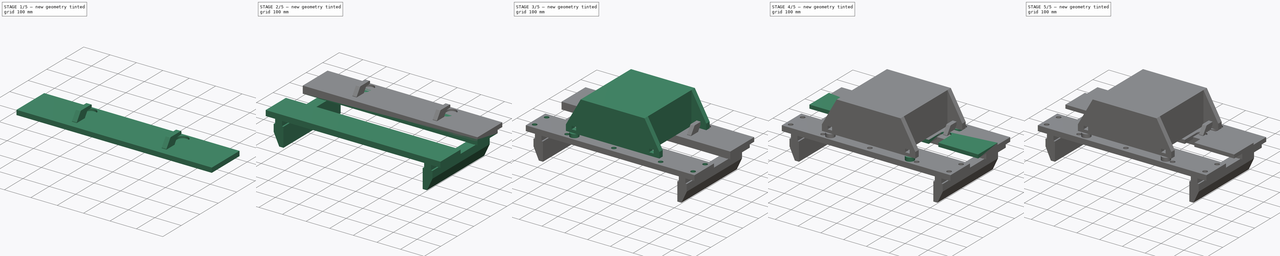
[diagram: build sequence overview — one tinted view per stage of 5, left to right]
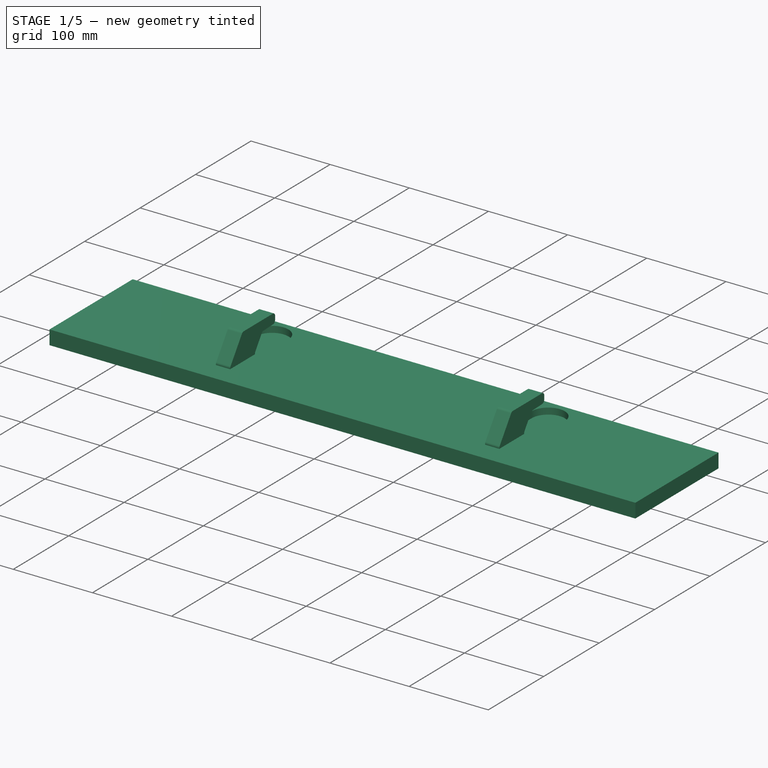
[diagram: stage 1 of 5 — iso view after this stage's code; geometry added in this stage tinted green]
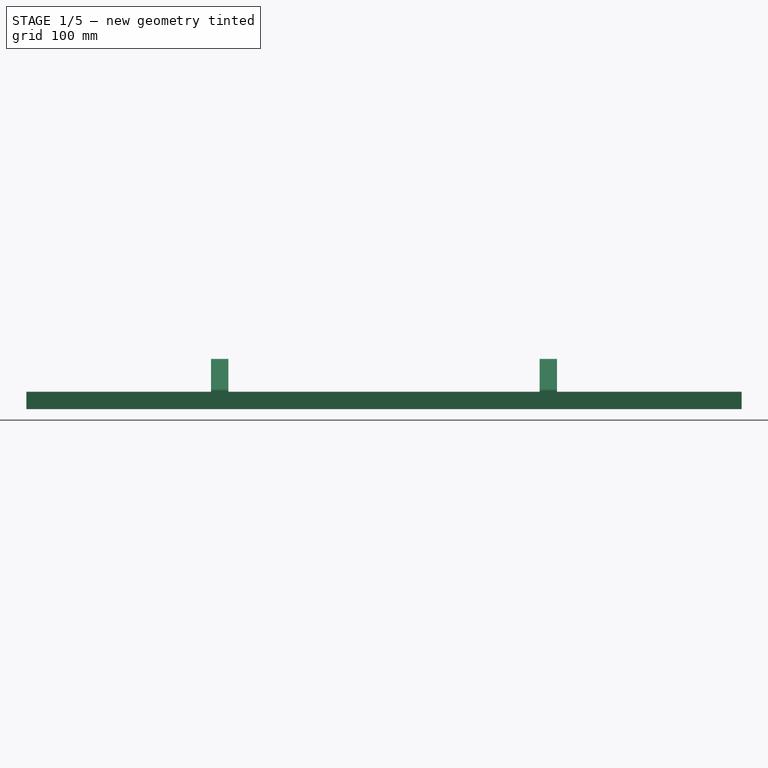
[diagram: stage 1 of 5 — front view after this stage's code; geometry added in this stage tinted green]
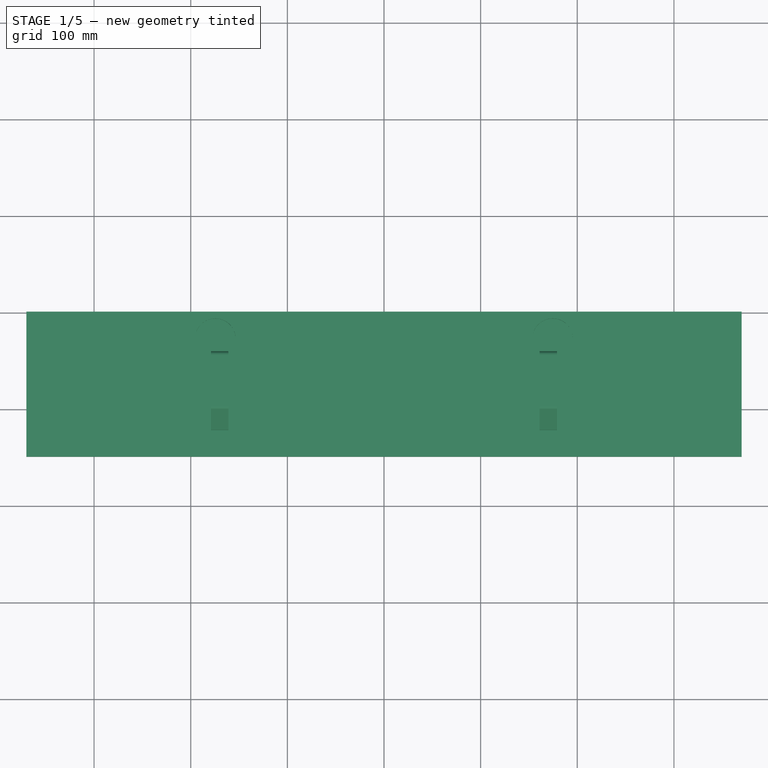
[diagram: stage 1 of 5 — top view after this stage's code; geometry added in this stage tinted green]
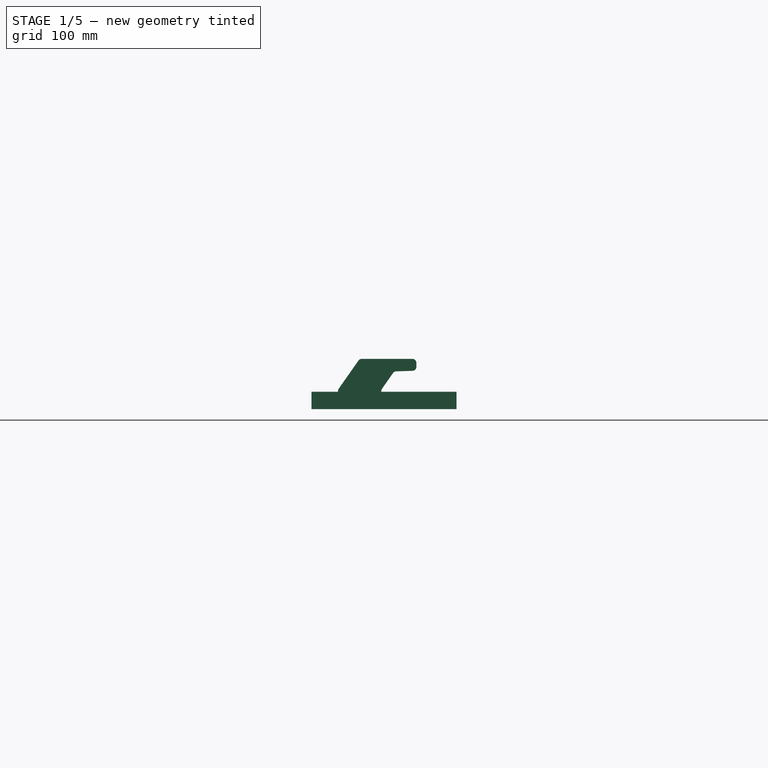
[diagram: stage 1 of 5 — right view after this stage's code; geometry added in this stage tinted green]
FCSTD DOCUMENT  (FreeCAD 0.18R)
Label: Aufnahme
License: CreativeCommons Attribution
LicenseURL: http://creativecommons.org/licenses/by/4.0/
objects: Sketcher::SketchObject×17, PartDesign::Pad×10, PartDesign::Body×7, PartDesign::Pocket×5, PartDesign::LinearPattern×4, App::Part×4, PartDesign::Hole×2, PartDesign::Fillet×1, PartDesign::Chamfer×1, Spreadsheet::Sheet×1, PartDesign::MultiTransform×1, PartDesign::PolarPattern×1, PartDesign::Plane×1, PartDesign::FeatureBase×1
note: 68 computed .brp shape members not serialized (recipe doc carries the construction recipe); baked Part::Feature solids carry a one-line shape summary decoded from their .brp

FEATURE [PartDesign::Body] Body003  label="Workbench"
  Group = -> [Sketch006,Pad005,Sketch010,Pad006,Sketch011,Pad007,Sketch012,Pocket002,Sketch013,Pocket003,PolarPattern]
  Origin = -> Origin004
  Placement = pos=(0,0,-10) rot=(0,0,1;0rad)
  Tip = -> PolarPattern
FEATURE [Sketcher::SketchObject] Sketch014
  MapMode = 5
  Support = -> [XY_Plane008]
  sketch-geometry (4):
    g0: LineSegment StartX=-370 StartY=201 StartZ=0 EndX=370 EndY=201 EndZ=0
    g1: LineSegment StartX=370 StartY=201 StartZ=0 EndX=370 EndY=51 EndZ=0
    g2: LineSegment StartX=370 StartY=51 StartZ=0 EndX=-370 EndY=51 EndZ=0
    g3: LineSegment StartX=-370 StartY=51 StartZ=0 EndX=-370 EndY=201 EndZ=0
  constraints (11):
    c: Coincident(g0,g1)
    c: Coincident(g1,g2)
    c: Coincident(g2,g3)
    c: Coincident(g3,g0)
    c: Horizontal(g2)
    c: Vertical(g1)
    c: Vertical(g3)
    c: DistanceX(g2,g2) = 740
    c: DistanceY(g1,g1) = 150
    c: Symmetric(g0,g0,g-2)
    c: DistanceY(g-1,g1) = 51
FEATURE [PartDesign::Pad] Pad008
  Length = 8
  Length2 = 10
  Profile = -> Sketch014
  Type = 4
FEATURE [Sketcher::SketchObject] Sketch015
  MapMode = 5
  Support = -> [XY_Plane008]
  sketch-geometry (9):
    g0: ArcOfCircle CenterX=-174.5 CenterY=173 CenterZ=0 NormalX=0 NormalY=0 NormalZ=1 AngleXU=0 Radius=21 StartAngle=6e-16 EndAngle=3.14159
    g1: ArcOfCircle CenterX=-174.5 CenterY=148 CenterZ=0 NormalX=0 NormalY=0 NormalZ=1 AngleXU=0 Radius=21 StartAngle=3.14159 EndAngle=6.28319
    g2: LineSegment StartX=-195.5 StartY=173 StartZ=0 EndX=-195.5 EndY=148 EndZ=0
    g3: LineSegment StartX=-153.5 StartY=173 StartZ=0 EndX=-153.5 EndY=148 EndZ=0
    g4: ArcOfCircle CenterX=174.5 CenterY=173 CenterZ=0 NormalX=0 NormalY=0 NormalZ=1 AngleXU=0 Radius=21 StartAngle=2e-16 EndAngle=3.14159
    g5: ArcOfCircle CenterX=174.5 CenterY=148 CenterZ=0 NormalX=0 NormalY=0 NormalZ=1 AngleXU=0 Radius=21 StartAngle=3.14159 EndAngle=6.28319
    g6: LineSegment StartX=153.5 StartY=173 StartZ=0 EndX=153.5 EndY=148 EndZ=0
    g7: LineSegment StartX=195.5 StartY=173 StartZ=0 EndX=195.5 EndY=148 EndZ=0
    g8: GeomPoint X=-174.5 Y=-148 Z=0
  constraints (20):
    c: Tangent(g0,g3) = 1.5708
    c: Tangent(g0,g2) = -1.5708
    c: Tangent(g2,g1) = -1.5708
    c: Tangent(g3,g1) = 1.5708
    c: Vertical(g2)
    c: Equal(g0,g1)
    c: Tangent(g4,g7) = 1.5708
    c: Tangent(g4,g6) = -1.5708
    c: Tangent(g6,g5) = -1.5708
    c: Tangent(g7,g5) = 1.5708
    c: Vertical(g6)
    c: Equal(g4,g5)
    c: Symmetric(g4,g0,g-2)
    c: DistanceX(g0,g4) = 349
    c: Diameter(g4) = 42
    c: Equal(g0,g4)
    c: Symmetric(g1,g8,g-1)
    c: DistanceY(g8,g1) = 296
    c: Equal(g3,g6)
    c: DistanceY(g7,g7) = 25
FEATURE [PartDesign::Pocket] Pocket004
  BaseFeature = -> Pad008
  Length = 5
  Length2 = 100
  Profile = -> Sketch015
  Reversed = true
  Type = 1
FEATURE [PartDesign::Plane] DatumPlane
  AttachmentOffset = pos=(0,0,-170) rot=(0,0,1;0rad)
  Length = 24
  MapMode = 5
  Placement = pos=(-170,3.77e-14,-3.77e-14) rot=(0.57735,0.57735,0.57735;2.0944rad)
  ResizeMode = 0
  Support = -> [YZ_Plane008]
  Width = 24
FEATURE [Sketcher::SketchObject] Sketch016
  MapMode = 5
  Placement = pos=(-170,3.77e-14,-3.77e-14) rot=(0.57735,0.57735,0.57735;2.0944rad)
  Support = -> [DatumPlane]
  sketch-geometry (23):
    g0: LineSegment [constr] StartX=136.5 StartY=29 StartZ=0 EndX=123.196 EndY=10 EndZ=0
    g1: LineSegment [constr] StartX=123.196 StartY=10 StartZ=0 EndX=123.196 EndY=0 EndZ=0
    g2: LineSegment [constr] StartX=123.196 StartY=0 StartZ=0 EndX=78.3828 EndY=0 EndZ=0
    g3: LineSegment [constr] StartX=78.3828 StartY=0 StartZ=0 EndX=78.3828 EndY=10 EndZ=0
    g4: LineSegment [constr] StartX=100.789 StartY=42 StartZ=0 EndX=159.5 EndY=42 EndZ=0
    g5: LineSegment [constr] StartX=159.5 StartY=42 StartZ=0 EndX=159.5 EndY=29.8032 EndZ=0
    g6: LineSegment [constr] StartX=159.5 StartY=29.8032 StartZ=0 EndX=136.5 EndY=29 EndZ=0
    g7: LineSegment [constr] StartX=100.789 StartY=42 StartZ=0 EndX=78.3828 EndY=10 EndZ=0
    g8: GeomPoint X=100.789 Y=0 Z=0
    g9: LineSegment StartX=102.872 StartY=42 StartZ=0 EndX=155.5 EndY=42 EndZ=0
    g10: LineSegment StartX=159.5 StartY=38 StartZ=0 EndX=159.5 EndY=33.6659 EndZ=0
    g11: LineSegment StartX=155.64 StartY=29.6684 StartZ=0 EndX=138.493 EndY=29.0696 EndZ=0
    g12: LineSegment StartX=135.356 StartY=27.3663 StartZ=0 EndX=123.919 EndY=11.0331 EndZ=0
    g13: LineSegment StartX=123.196 StartY=8.7388 StartZ=0 EndX=123.196 EndY=0 EndZ=0
    g14: LineSegment StartX=123.196 StartY=0 StartZ=0 EndX=78.3828 EndY=0 EndZ=0
    g15: LineSegment StartX=78.3828 StartY=0 StartZ=0 EndX=78.3828 EndY=8.7388 EndZ=0
    g16: LineSegment StartX=79.1062 StartY=11.0331 StartZ=0 EndX=99.5951 EndY=40.2943 EndZ=0
    g17: ArcOfCircle CenterX=155.5 CenterY=38 CenterZ=0 NormalX=0 NormalY=0 NormalZ=1 AngleXU=0 Radius=4 StartAngle=5.8e-15 EndAngle=1.5708
    g18: ArcOfCircle CenterX=155.5 CenterY=33.6659 CenterZ=0 NormalX=0 NormalY=0 NormalZ=1 AngleXU=0 Radius=4 StartAngle=4.7473 EndAngle=6.28319
    g19: ArcOfCircle CenterX=138.633 CenterY=25.072 CenterZ=0 NormalX=0 NormalY=0 NormalZ=1 AngleXU=0 Radius=4 StartAngle=1.6057 EndAngle=2.53073
    g20: ArcOfCircle CenterX=127.196 CenterY=8.7388 CenterZ=0 NormalX=0 NormalY=0 NormalZ=1 AngleXU=0 Radius=4 StartAngle=2.53073 EndAngle=3.14159
    g21: ArcOfCircle CenterX=82.3828 CenterY=8.7388 CenterZ=0 NormalX=0 NormalY=0 NormalZ=1 AngleXU=0 Radius=4 StartAngle=2.53073 EndAngle=3.14159
    g22: ArcOfCircle CenterX=102.872 CenterY=38 CenterZ=0 NormalX=0 NormalY=0 NormalZ=1 AngleXU=0 Radius=4 StartAngle=1.5708 EndAngle=2.53073
  constraints (53):
    c: Coincident(g0,g1)
    c: Coincident(g1,g2)
    c: Coincident(g2,g3)
    c: Coincident(g4,g5)
    c: Vertical(g5)
    c: Vertical(g1)
    c: Vertical(g3)
    c: Horizontal(g2)
    c: PointOnObject(g-1,g2)
    c: DistanceX(g-1,g0) = 136.5
    c: Coincident(g7,g3)
    c: DistanceY(g1,g1) = 10
    c: Equal(g3,g1)
    c: DistanceY(g1,g6) = 29
    c: Coincident(g5,g6)
    c: Angle(g4,g6) = 0.0349066
    c: Coincident(g4,g7)
    c: Coincident(g0,g6)
    c: Horizontal(g4)
    c: Angle(g0,g-1) = 2.18166
    c: DistanceY(g0,g4) = 13
    c: DistanceX(g6,g6) = 23
    c: Parallel(g0,g7)
    c: Symmetric(g2,g2,g8)
    c: Vertical(g7,g8)
    c: Tangent(g9,g17) = 1.5708
    c: Tangent(g10,g17) = 1.5708
    c: Tangent(g10,g18) = 1.5708
    c: Tangent(g11,g18) = 1.5708
    c: Tangent(g11,g19) = -1.5708
    c: Tangent(g12,g19) = -1.5708
    c: Tangent(g12,g20) = -1.5708
    c: Tangent(g13,g20) = -1.5708
    c: Tangent(g15,g21) = 1.5708
    c: Tangent(g16,g21) = 1.5708
    c: Tangent(g9,g22) = 1.5708
    c: Tangent(g16,g22) = 1.5708
    c: Equal(g22,g21)
    c: Equal(g19,g18)
    c: Equal(g18,g17)
    c: Tangent(g4,g9)
    c: Tangent(g7,g16)
    c: Tangent(g15,g3)
    c: Tangent(g14,g2)
    c: Tangent(g13,g1)
    c: Tangent(g12,g0)
    c: Tangent(g11,g6)
    c: Tangent(g10,g5)
    c: Coincident(g15,g14)
    c: Coincident(g14,g13)
    c: Equal(g21,g20)
    c: Equal(g20,g17)
    c: Radius(g17) = 4
FEATURE [PartDesign::Pad] Pad009
  BaseFeature = -> Pocket004
  Length = 18
  Length2 = 100
  Midplane = true
  Profile = -> Sketch016
  Type = 0
FEATURE [PartDesign::LinearPattern] LinearPattern003
  BaseFeature = -> Pad009
  Direction = -> X_Axis008
  Length = 340
  Occurrences = 2
  Originals = -> [Pad009]
FEATURE [PartDesign::Body] Body005
  Group = -> [Sketch014,Pad008,Sketch015,Pocket004,DatumPlane,Sketch016,Pad009,LinearPattern003]
  Origin = -> Origin008
  Tip = -> LinearPattern003
FEATURE [PartDesign::FeatureBase] Clone
  BaseFeature = -> Body005
FEATURE [PartDesign::Body] Body006
  Group = -> [Clone]
  Origin = -> Origin010
  Placement = pos=(0,0,0) rot=(0,0,1;3.14159rad)
  Tip = -> Clone
FEATURE [App::Part] Part003
  Group = -> [Body003,Body004,Body005,Body006]
  Origin = -> Origin009
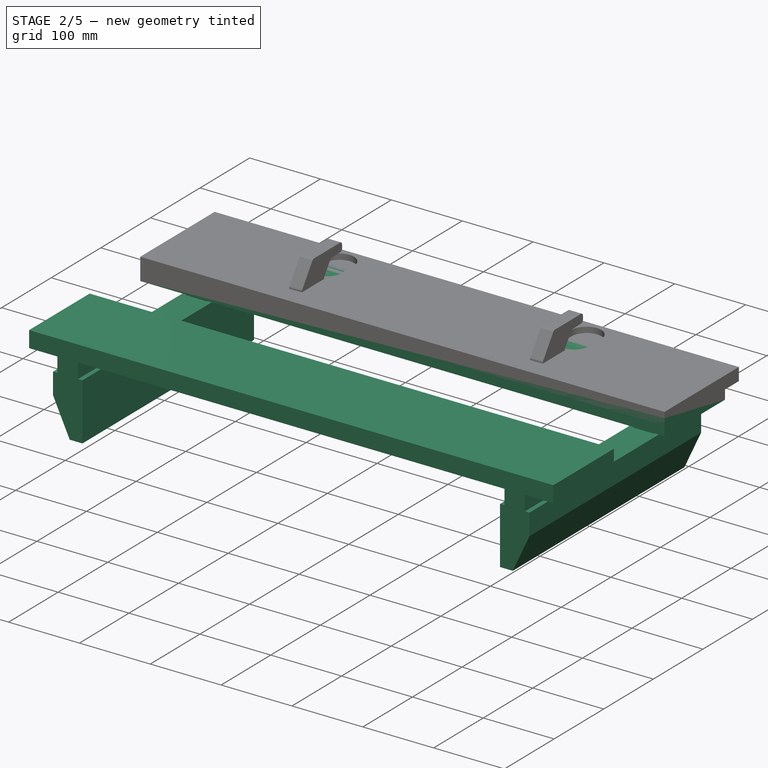
[diagram: stage 2 of 5 — iso view after this stage's code; geometry added in this stage tinted green]
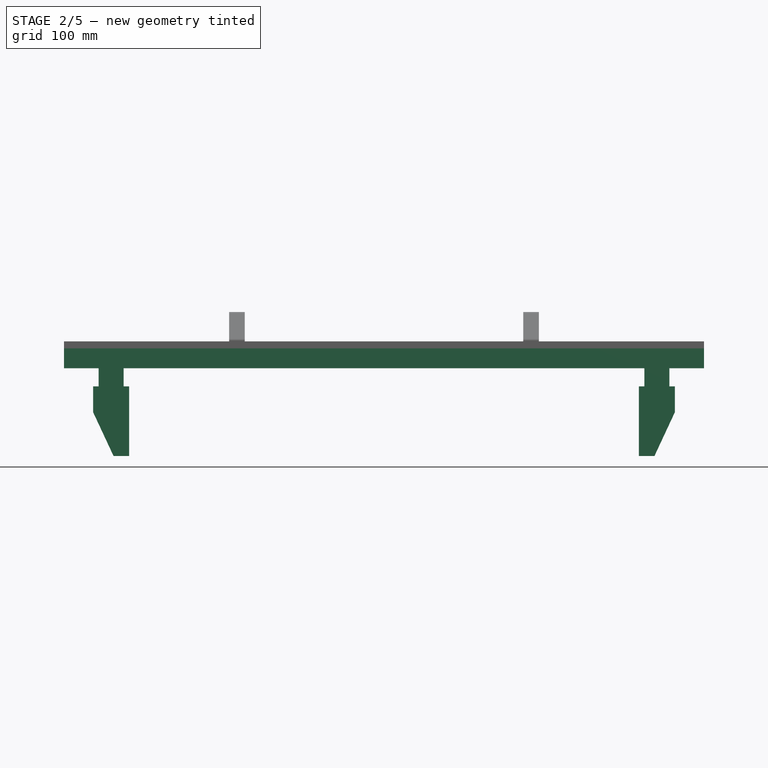
[diagram: stage 2 of 5 — front view after this stage's code; geometry added in this stage tinted green]
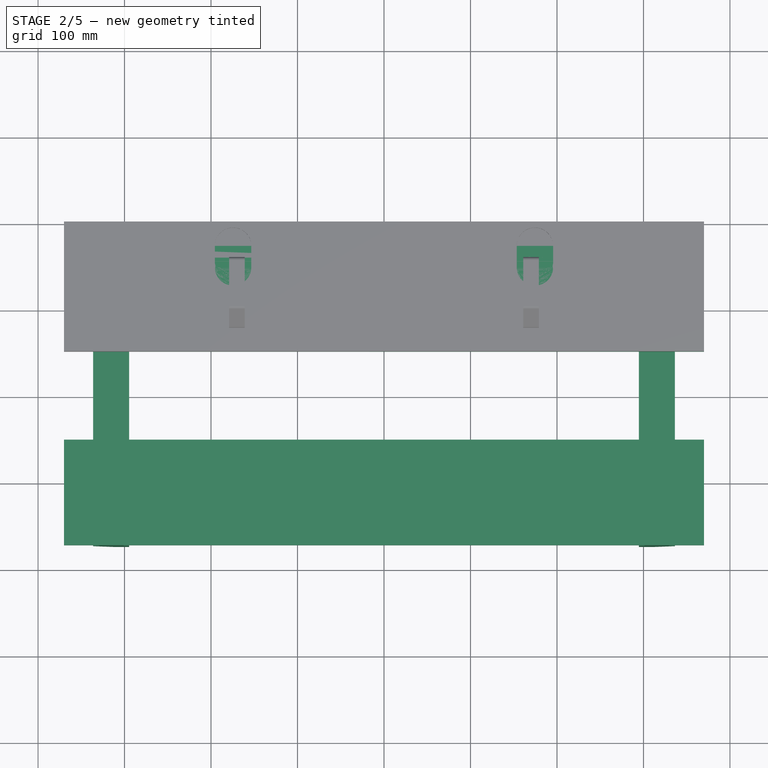
[diagram: stage 2 of 5 — top view after this stage's code; geometry added in this stage tinted green]
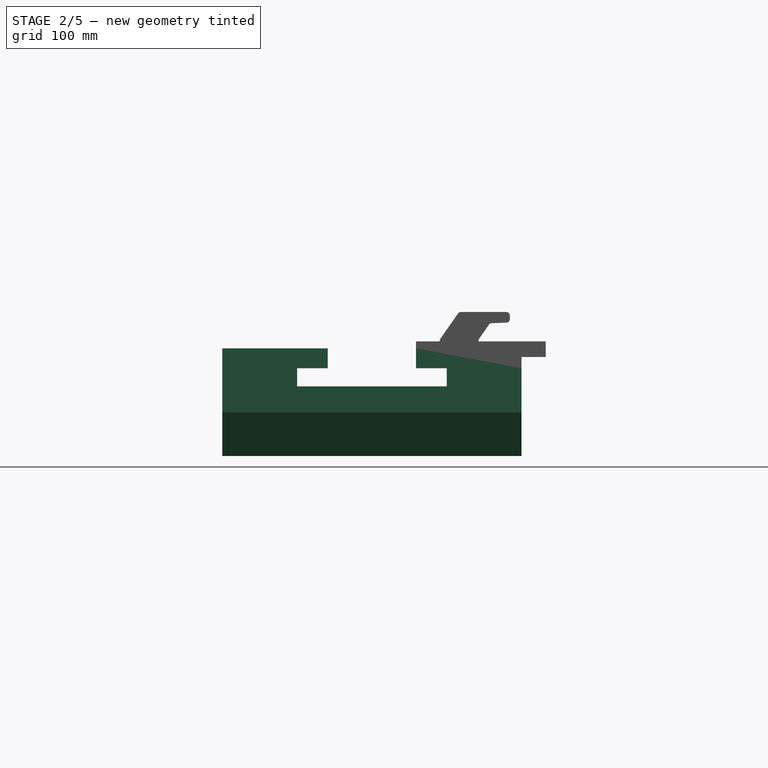
[diagram: stage 2 of 5 — right view after this stage's code; geometry added in this stage tinted green]
FEATURE [PartDesign::Body] Body004  label="Planer"
  Group = -> [Sketch007,Pad003,Sketch008,Sketch009,Pocket001,Pad004,MultiTransform,LinearPattern001,LinearPattern002]
  Origin = -> Origin
  Tip = -> MultiTransform
FEATURE [PartDesign::Pad] Pad005
  Length = 23
  Length2 = 100
  Profile = -> Sketch006
  Reversed = true
  Type = 0
FEATURE [Sketcher::SketchObject] Sketch010
  ExternalGeometry = -> [Pad005]
  MapMode = 5
  Placement = pos=(0,0,-23) rot=(1,0,0;3.14159rad)
  Support = -> [Pad005]
  sketch-geometry (16):
    g0: LineSegment StartX=-330 StartY=173 StartZ=0 EndX=-301 EndY=173 EndZ=0
    g1: LineSegment StartX=-301 StartY=173 StartZ=0 EndX=-301 EndY=86.5 EndZ=0
    g2: LineSegment StartX=-301 StartY=86.5 StartZ=0 EndX=-330 EndY=86.5 EndZ=0
    g3: LineSegment StartX=-330 StartY=86.5 StartZ=0 EndX=-330 EndY=173 EndZ=0
    g4: LineSegment StartX=-330 StartY=-86.5 StartZ=0 EndX=-301 EndY=-86.5 EndZ=0
    g5: LineSegment StartX=-301 StartY=-86.5 StartZ=0 EndX=-301 EndY=-173 EndZ=0
    g6: LineSegment StartX=-301 StartY=-173 StartZ=0 EndX=-330 EndY=-173 EndZ=0
    g7: LineSegment StartX=-330 StartY=-173 StartZ=0 EndX=-330 EndY=-86.5 EndZ=0
    g8: LineSegment StartX=301 StartY=-86.5 StartZ=0 EndX=330 EndY=-86.5 EndZ=0
    g9: LineSegment StartX=330 StartY=-86.5 StartZ=0 EndX=330 EndY=-173 EndZ=0
    g10: LineSegment StartX=330 StartY=-173 StartZ=0 EndX=301 EndY=-173 EndZ=0
    g11: LineSegment StartX=301 StartY=-173 StartZ=0 EndX=301 EndY=-86.5 EndZ=0
    g12: LineSegment StartX=301 StartY=173 StartZ=0 EndX=330 EndY=173 EndZ=0
    g13: LineSegment StartX=330 StartY=173 StartZ=0 EndX=330 EndY=86.5 EndZ=0
    g14: LineSegment StartX=330 StartY=86.5 StartZ=0 EndX=301 EndY=86.5 EndZ=0
    g15: LineSegment StartX=301 StartY=86.5 StartZ=0 EndX=301 EndY=173 EndZ=0
  constraints (42):
    c: Coincident(g0,g1)
    c: Coincident(g1,g2)
    c: Coincident(g2,g3)
    c: Coincident(g3,g0)
    c: Horizontal(g2)
    c: Vertical(g1)
    c: Coincident(g4,g5)
    c: Coincident(g5,g6)
    c: Coincident(g6,g7)
    c: Coincident(g7,g4)
    c: Horizontal(g4)
    c: Horizontal(g6)
    c: Vertical(g5)
    c: Coincident(g8,g9)
    c: Coincident(g9,g10)
    c: Coincident(g10,g11)
    c: Coincident(g11,g8)
    c: Horizontal(g8)
    c: Vertical(g9)
    c: Vertical(g11)
    c: Coincident(g12,g13)
    c: Coincident(g13,g14)
    c: Coincident(g14,g15)
    c: Coincident(g15,g12)
    c: Horizontal(g14)
    c: Vertical(g15)
    c: DistanceX(g0,g0) = 29
    c: DistanceY(g1,g1) = 86.5
    c: DistanceX(g-3,g0) = 40
    c: Equal(g2,g6)
    c: Equal(g6,g14)
    c: Equal(g14,g10)
    c: Equal(g1,g5)
    c: Equal(g5,g9)
    c: Equal(g9,g13)
    c: PointOnObject(g-3,g0)
    c: Tangent(g0,g12)
    c: Tangent(g7,g3)
    c: Symmetric(g0,g6,g-1)
    c: Symmetric(g0,g12,g-2)
    c: Tangent(g13,g9)
    c: Tangent(g10,g6)
FEATURE [PartDesign::Pad] Pad006
  BaseFeature = -> Pad005
  Length = 21
  Length2 = 100
  Profile = -> Sketch010
  Type = 0
FEATURE [Sketcher::SketchObject] Sketch011
  ExternalGeometry = -> [Pad006]
  MapMode = 5
  Placement = pos=(0,0,0) rot=(1,0,0;1.5708rad)
  Support = -> [XZ_Plane004]
  sketch-geometry (13):
    g0: LineSegment StartX=-294.75 StartY=-44 StartZ=0 EndX=-294.75 EndY=-124.5 EndZ=0
    g1: LineSegment StartX=-294.75 StartY=-124.5 StartZ=0 EndX=-312.701 EndY=-124.5 EndZ=0
    g2: LineSegment StartX=-312.701 StartY=-124.5 StartZ=0 EndX=-336.25 EndY=-74 EndZ=0
    g3: LineSegment StartX=-336.25 StartY=-74 StartZ=0 EndX=-336.25 EndY=-44 EndZ=0
    g4: LineSegment StartX=294.75 StartY=-44 StartZ=0 EndX=336.25 EndY=-44 EndZ=0
    g5: LineSegment StartX=336.25 StartY=-44 StartZ=0 EndX=336.25 EndY=-74 EndZ=0
    g6: LineSegment StartX=336.25 StartY=-74 StartZ=0 EndX=312.701 EndY=-124.5 EndZ=0
    g7: LineSegment StartX=312.701 StartY=-124.5 StartZ=0 EndX=294.75 EndY=-124.5 EndZ=0
    g8: LineSegment StartX=294.75 StartY=-124.5 StartZ=0 EndX=294.75 EndY=-44 EndZ=0
    g9: LineSegment [constr] StartX=-336.25 StartY=-44 StartZ=0 EndX=-330 EndY=-44 EndZ=0
    g10: LineSegment [constr] StartX=-330 StartY=-44 StartZ=0 EndX=-301 EndY=-44 EndZ=0
    g11: LineSegment [constr] StartX=-301 StartY=-44 StartZ=0 EndX=-294.75 EndY=-44 EndZ=0
    g12: LineSegment StartX=-336.25 StartY=-44 StartZ=0 EndX=-294.75 EndY=-44 EndZ=0
  constraints (35):
    c: Coincident(g0,g1)
    c: Coincident(g1,g2)
    c: Coincident(g2,g3)
    c: Coincident(g4,g5)
    c: Coincident(g5,g6)
    c: Coincident(g6,g7)
    c: Coincident(g7,g8)
    c: Coincident(g4,g8)
    c: Horizontal(g7)
    c: Horizontal(g1)
    c: Vertical(g0)
    c: Vertical(g3)
    c: Vertical(g5)
    c: Vertical(g8)
    c: Symmetric(g0,g4,g-2)
    c: Symmetric(g5,g2,g-2)
    c: Equal(g3,g5)
    c: Equal(g7,g1)
    c: Equal(g8,g0)
    c: Coincident(g9,g10)
    c: Coincident(g10,g11)
    c: Coincident(g0,g11)
    c: Coincident(g3,g9)
    c: Horizontal(g9)
    c: Horizontal(g10)
    c: Horizontal(g11)
    c: Equal(g11,g9)
    c: Equal(g10,g-3)
    c: Coincident(g9,g-3)
    c: DistanceX(g3,g0) = 41.5
    c: DistanceY(g0,g0) = 80.5
    c: DistanceY(g3,g3) = 30
    c: Angle(g0,g2) = 0.436332
    c: Coincident(g3,g12)
    c: Coincident(g0,g12)
FEATURE [PartDesign::Pad] Pad007
  BaseFeature = -> Pad006
  Length = 346
  Length2 = 100
  Midplane = true
  Profile = -> Sketch011
  Type = 0
FEATURE [Sketcher::SketchObject] Sketch012
  ExternalGeometry = -> [Pad007]
  MapMode = 5
  Support = -> [XY_Plane004]
  sketch-geometry (4):
    g0: LineSegment StartX=-370 StartY=51 StartZ=0 EndX=370 EndY=51 EndZ=0
    g1: LineSegment StartX=370 StartY=51 StartZ=0 EndX=370 EndY=-51 EndZ=0
    g2: LineSegment StartX=370 StartY=-51 StartZ=0 EndX=-370 EndY=-51 EndZ=0
    g3: LineSegment StartX=-370 StartY=-51 StartZ=0 EndX=-370 EndY=51 EndZ=0
  constraints (10):
    c: Coincident(g0,g1)
    c: Coincident(g1,g2)
    c: Coincident(g2,g3)
    c: Coincident(g3,g0)
    c: Horizontal(g0)
    c: Horizontal(g2)
    c: Vertical(g1)
    c: Symmetric(g0,g1,g-1)
    c: Tangent(g3,g-3)
    c: DistanceY(g0,g-3) = 122
FEATURE [PartDesign::Pocket] Pocket002
  BaseFeature = -> Pad007
  Length = 23
  Length2 = 100
  Profile = -> Sketch012
  Type = 2
FEATURE [Sketcher::SketchObject] Sketch013
  ExternalGeometry = -> [Pocket002]
  MapMode = 5
  Support = -> [XY_Plane004]
  sketch-geometry (12):
    g0: Circle CenterX=347.5 CenterY=149.5 CenterZ=0 NormalX=0 NormalY=0 NormalZ=1 AngleXU=0 Radius=10
    g1: Circle CenterX=347.5 CenterY=74.5 CenterZ=0 NormalX=0 NormalY=0 NormalZ=1 AngleXU=0 Radius=10
    g2: Circle CenterX=205 CenterY=149.5 CenterZ=0 NormalX=0 NormalY=0 NormalZ=1 AngleXU=0 Radius=10
    g3: Circle CenterX=0 CenterY=149.5 CenterZ=0 NormalX=0 NormalY=0 NormalZ=1 AngleXU=0 Radius=10
    g4: Circle CenterX=75 CenterY=74.5 CenterZ=0 NormalX=0 NormalY=0 NormalZ=1 AngleXU=0 Radius=10
    g5: Circle CenterX=0 CenterY=74.5 CenterZ=0 NormalX=0 NormalY=0 NormalZ=1 AngleXU=0 Radius=10
    g6: Circle CenterX=-75 CenterY=74.5 CenterZ=0 NormalX=0 NormalY=0 NormalZ=1 AngleXU=0 Radius=10
    g7: Circle CenterX=-347.5 CenterY=149.5 CenterZ=0 NormalX=0 NormalY=0 NormalZ=1 AngleXU=0 Radius=10
    g8: Circle CenterX=-347.5 CenterY=74.5 CenterZ=0 NormalX=0 NormalY=0 NormalZ=1 AngleXU=0 Radius=10
    g9: Circle CenterX=-205 CenterY=149.5 CenterZ=0 NormalX=0 NormalY=0 NormalZ=1 AngleXU=0 Radius=10
    g10: LineSegment [constr] StartX=-347.5 StartY=149.5 StartZ=0 EndX=-370 EndY=173 EndZ=0
    g11: LineSegment [constr] StartX=-347.5 StartY=74.5 StartZ=0 EndX=-370 EndY=51 EndZ=0
  constraints (30):
    c: Equal(g0,g1)
    c: Equal(g1,g2)
    c: Equal(g2,g3)
    c: Equal(g3,g4)
    c: Equal(g4,g5)
    c: Equal(g5,g6)
    c: Equal(g6,g7)
    c: Equal(g7,g8)
    c: Equal(g8,g9)
    c: Diameter(g8) = 20
    c: Horizontal(g7,g9)
    c: Horizontal(g9,g3)
    c: Horizontal(g8,g6)
    c: Horizontal(g6,g5)
    c: Vertical(g8,g7)
    c: Symmetric(g9,g2,g-2)
    c: Symmetric(g7,g0,g-2)
    c: Symmetric(g6,g4,g-2)
    c: Symmetric(g8,g1,g-2)
    c: PointOnObject(g3,g-2)
    c: PointOnObject(g5,g-2)
    c: DistanceY(g8,g7) = 75
    c: Coincident(g10,g7)
    c: Coincident(g10,g-3)
    c: Coincident(g11,g8)
    c: Coincident(g11,g-3)
    c: Equal(g11,g10)
    c: DistanceX(g6,g4) = 150
    c: DistanceX(g9,g2) = 410
    c: DistanceX(g7,g0) = 695
FEATURE [PartDesign::Pocket] Pocket003
  BaseFeature = -> Pocket002
  Length = 23
  Length2 = 100
  Profile = -> Sketch013
  Type = 0
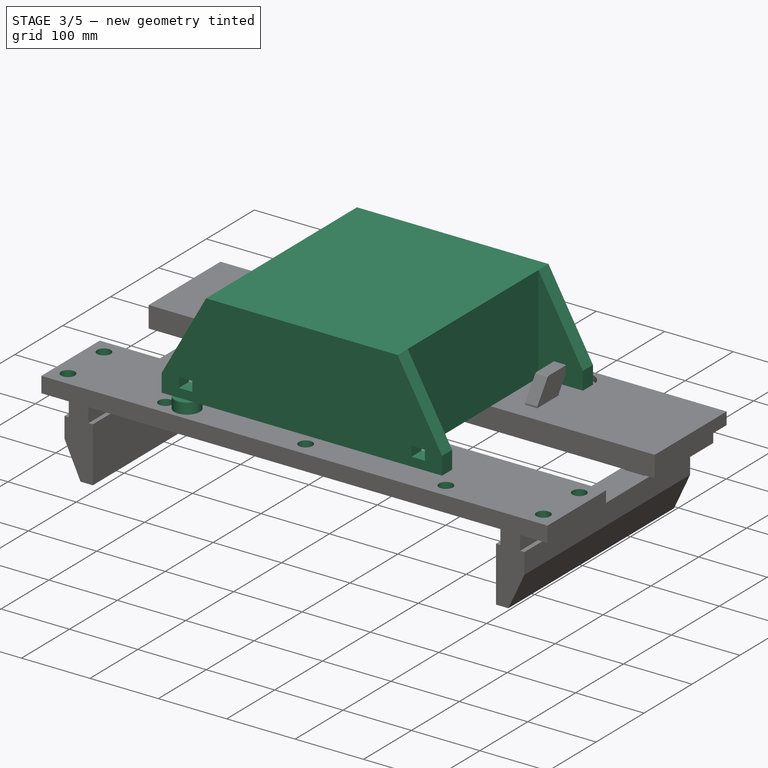
[diagram: stage 3 of 5 — iso view after this stage's code; geometry added in this stage tinted green]
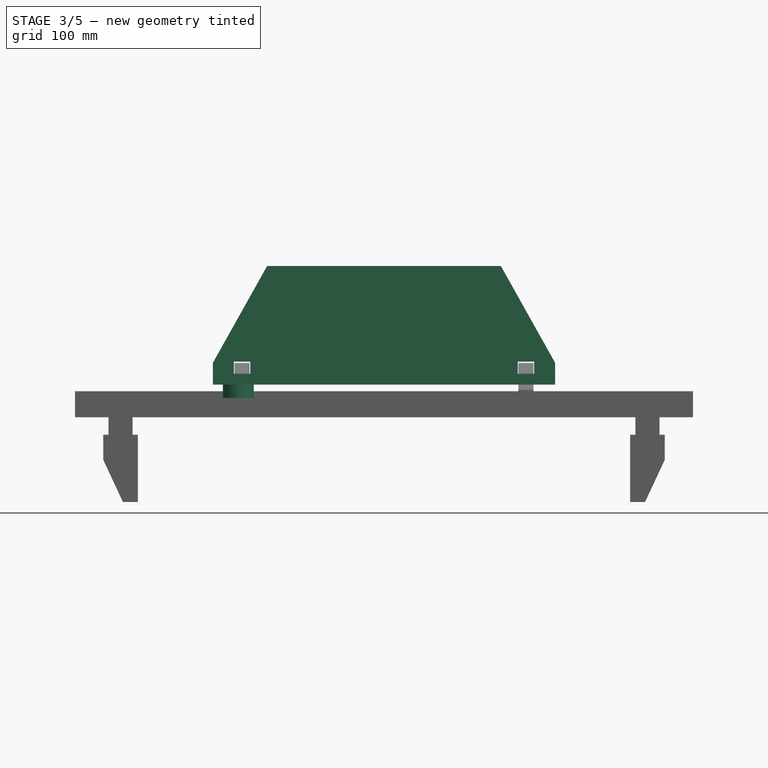
[diagram: stage 3 of 5 — front view after this stage's code; geometry added in this stage tinted green]
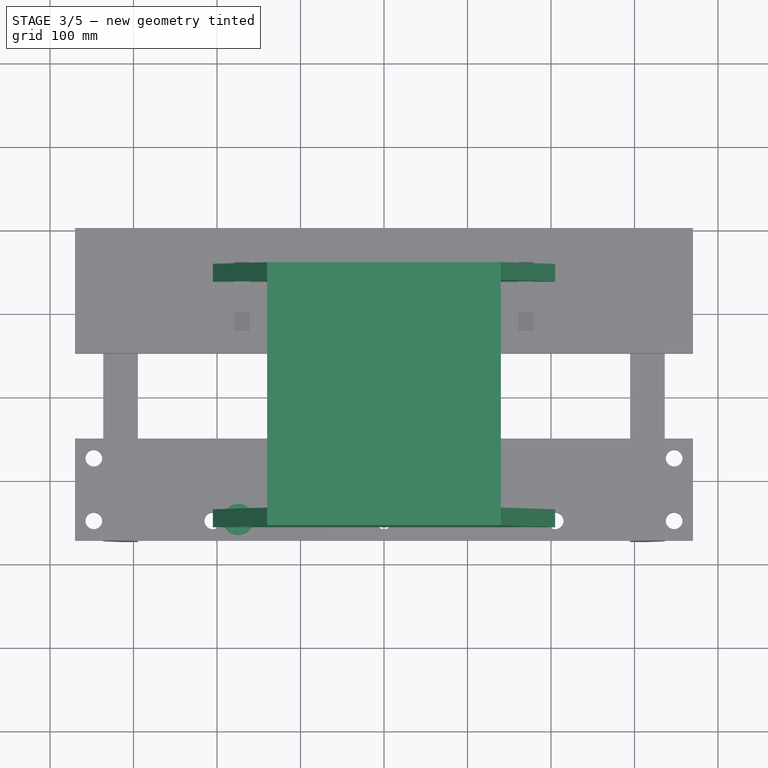
[diagram: stage 3 of 5 — top view after this stage's code; geometry added in this stage tinted green]
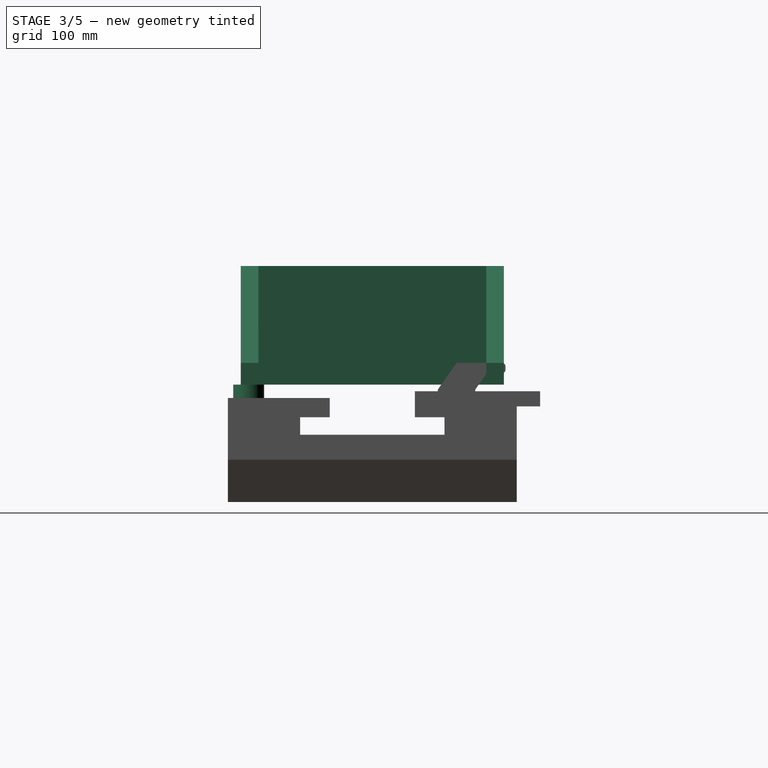
[diagram: stage 3 of 5 — right view after this stage's code; geometry added in this stage tinted green]
FEATURE [PartDesign::Body] Body002  label="Hülse"
  Group = -> [Sketch004,Pad002,Sketch005,Hole001,Chamfer]
  Origin = -> Origin003
  Placement = pos=(-76,22,0) rot=(1,0,0;3.14159rad)
  Tip = -> Chamfer
FEATURE [Spreadsheet::Sheet] Spreadsheet  label="Parameter"
  cells = A1=Werkbank; A2=Öffnung max; B2=346; A3=Länge; B3=740; A4=Breite; B4=122; A5=Hülsenabstand Länge; A6=Hülsenversatz Breite; A7=Mittelhülse Breite; B7=22; A9=Grundplatte; A10=Länge; B10(grundplatte_laenge)=740; A11=Breite; B11(grundplatte_breite)=122; A12=Höhe; B12(grundplatte_hoehe)=16; A14=Haken; A15=Fasenwinkel; B15=10; A18=Hobelmaschine; A19=Fußabstand Länge; B19=349; A20=Fußabstand Breite; B20=292; A21=Fußdurchmesser; B21=37; A22=Lochabstand; B22=340; A23=Lochversatz Höhe; B23=29; A24=Lochhöhe; B24=13; A25=Lochbreite; B25=20; A30=Brettstärken; B30=18; C30=21
FEATURE [Sketcher::SketchObject] Sketch006
  MapMode = 5
  Support = -> [XY_Plane004]
  sketch-geometry (4):
    g0: LineSegment StartX=-370 StartY=173 StartZ=0 EndX=370 EndY=173 EndZ=0
    g1: LineSegment StartX=370 StartY=173 StartZ=0 EndX=370 EndY=-173 EndZ=0
    g2: LineSegment StartX=370 StartY=-173 StartZ=0 EndX=-370 EndY=-173 EndZ=0
    g3: LineSegment StartX=-370 StartY=-173 StartZ=0 EndX=-370 EndY=173 EndZ=0
  constraints (11):
    c: Coincident(g0,g1)
    c: Coincident(g1,g2)
    c: Coincident(g2,g3)
    c: Coincident(g3,g0)
    c: Horizontal(g0)
    c: Horizontal(g2)
    c: Vertical(g1)
    c: Vertical(g3)
    c: Symmetric(g0,g1,g-1)
    c: DistanceX(g2,g2) = 740
    c: DistanceY(g1,g1) = 346
FEATURE [App::Part] Part002  label="Aufnahme"
  Group = -> [Body,Body001,Body002]
  Origin = -> Origin006
FEATURE [App::Part] Part  label="Hobelmaschine"
  Origin = -> Origin007
FEATURE [App::Part] Part001  label="Hobelmaschine+Werkbank"
  Group = -> [Spreadsheet,Part002,Part]
  Origin = -> Origin005
FEATURE [Sketcher::SketchObject] Sketch007  label="BodyPadSketch"
  MapMode = 5
  Placement = pos=(0,0,0) rot=(1,0,0;1.5708rad)
  Support = -> [XZ_Plane]
  sketch-geometry (16):
    g0: LineSegment StartX=-205 StartY=16 StartZ=0 EndX=205 EndY=16 EndZ=0
    g1: LineSegment StartX=140 StartY=158 StartZ=0 EndX=-140 EndY=158 EndZ=0
    g2: LineSegment StartX=-140 StartY=158 StartZ=0 EndX=-205 EndY=42 EndZ=0
    g3: LineSegment StartX=-205 StartY=42 StartZ=0 EndX=-205 EndY=16 EndZ=0
    g4: LineSegment StartX=140 StartY=158 StartZ=0 EndX=205 EndY=42 EndZ=0
    g5: LineSegment StartX=205 StartY=42 StartZ=0 EndX=205 EndY=16 EndZ=0
    g6: LineSegment StartX=-179.8 StartY=43.5 StartZ=0 EndX=-160.2 EndY=43.5 EndZ=0
    g7: LineSegment StartX=-160.2 StartY=43.5 StartZ=0 EndX=-160.2 EndY=29 EndZ=0
    g8: LineSegment StartX=-160.2 StartY=29 StartZ=0 EndX=-179.8 EndY=29 EndZ=0
    g9: LineSegment StartX=-179.8 StartY=29 StartZ=0 EndX=-179.8 EndY=43.5 EndZ=0
    g10: LineSegment StartX=160.2 StartY=43.5 StartZ=0 EndX=179.8 EndY=43.5 EndZ=0
    g11: LineSegment StartX=179.8 StartY=43.5 StartZ=0 EndX=179.8 EndY=29 EndZ=0
    g12: LineSegment StartX=179.8 StartY=29 StartZ=0 EndX=160.2 EndY=29 EndZ=0
    g13: LineSegment StartX=160.2 StartY=29 StartZ=0 EndX=160.2 EndY=43.5 EndZ=0
    g14: GeomPoint X=-170 Y=29 Z=0
    g15: GeomPoint X=170 Y=29 Z=0
  constraints (41):
    c: Symmetric(g1,g1,g-2)
    c: Symmetric(g0,g0,g-2)
    c: DistanceY(g-1,g0) = 16
    c: Coincident(g2,g3)
    c: Coincident(g4,g5)
    c: Coincident(g1,g2)
    c: Coincident(g0,g3)
    c: Coincident(g0,g5)
    c: Coincident(g1,g4)
    c: Vertical(g3)
    c: Vertical(g5)
    c: Coincident(g6,g7)
    c: Coincident(g7,g8)
    c: Coincident(g8,g9)
    c: Coincident(g9,g6)
    c: Horizontal(g6)
    c: Horizontal(g8)
    c: Vertical(g7)
    c: Vertical(g9)
    c: Coincident(g10,g11)
    c: Coincident(g11,g12)
    c: Coincident(g12,g13)
    c: Coincident(g13,g10)
    c: Horizontal(g10)
    c: Horizontal(g12)
    c: Vertical(g11)
    c: Vertical(g13)
    c: Symmetric(g7,g12,g-2)
    c: Equal(g7,g13)
    c: Equal(g12,g8)
    c: Symmetric(g8,g8,g14)
    c: Symmetric(g12,g12,g15)
    c: DistanceX(g14,g15) = 340
    c: DistanceX(g0,g0) = 410
    c: DistanceY(g11,g11) = 14.5
    c: DistanceX(g12,g12) = 19.6
    c: DistanceY(g-1,g1) = 158
    c: DistanceY(g-1,g4) = 42
    c: Equal(g3,g5)
    c: DistanceY(g-1,g11) = 29
    c: DistanceX(g1,g1) = 280
FEATURE [PartDesign::Pad] Pad003  label="BodyPad"
  Length = 315
  Length2 = 100
  Midplane = true
  Placement = pos=(0,0,0) rot=(1,0,0;1.5708rad)
  Profile = -> Sketch007
  Type = 0
FEATURE [Sketcher::SketchObject] Sketch008  label="StandSketch"
  MapMode = 5
  Support = -> [XY_Plane]
  sketch-geometry (5):
    g0: LineSegment [constr] StartX=-174.5 StartY=148 StartZ=0 EndX=174.5 EndY=148 EndZ=0
    g1: LineSegment [constr] StartX=174.5 StartY=148 StartZ=0 EndX=174.5 EndY=-148 EndZ=0
    g2: LineSegment [constr] StartX=174.5 StartY=-148 StartZ=0 EndX=-174.5 EndY=-148 EndZ=0
    g3: LineSegment [constr] StartX=-174.5 StartY=-148 StartZ=0 EndX=-174.5 EndY=148 EndZ=0
    g4: Circle CenterX=-174.5 CenterY=-148 CenterZ=0 NormalX=0 NormalY=0 NormalZ=1 AngleXU=0 Radius=18.5
  constraints (13):
    c: Coincident(g0,g1)
    c: Coincident(g1,g2)
    c: Coincident(g2,g3)
    c: Coincident(g3,g0)
    c: Horizontal(g0)
    c: Horizontal(g2)
    c: Vertical(g1)
    c: Vertical(g3)
    c: DistanceY(g1,g1) = 296
    c: DistanceX(g2,g2) = 349
    c: Diameter(g4) = 37
    c: Coincident(g4,g2)
    c: Symmetric(g0,g1,g-1)
FEATURE [PartDesign::LinearPattern] LinearPattern001  label="LinearPatternX"
  Direction = -> X_Axis
  Length = 349
  Occurrences = 2
  Placement = pos=(0,0,0) rot=(1,0,0;1.5708rad)
FEATURE [PartDesign::LinearPattern] LinearPattern002  label="LinearPatternY"
  Direction = -> Y_Axis
  Length = 296
  Occurrences = 2
  Placement = pos=(0,0,0) rot=(1,0,0;1.5708rad)
FEATURE [Sketcher::SketchObject] Sketch009  label="BodyPocketSketch"
  ExternalGeometry = -> [Pad003]
  MapMode = 5
  Support = -> [XY_Plane]
  sketch-geometry (8):
    g0: LineSegment StartX=-205 StartY=136.5 StartZ=0 EndX=-140 EndY=136.5 EndZ=0
    g1: LineSegment StartX=-140 StartY=136.5 StartZ=0 EndX=-140 EndY=-136.5 EndZ=0
    g2: LineSegment StartX=-140 StartY=-136.5 StartZ=0 EndX=-205 EndY=-136.5 EndZ=0
    g3: LineSegment StartX=-205 StartY=-136.5 StartZ=0 EndX=-205 EndY=136.5 EndZ=0
    g4: LineSegment StartX=205 StartY=136.5 StartZ=0 EndX=140 EndY=136.5 EndZ=0
    g5: LineSegment StartX=140 StartY=136.5 StartZ=0 EndX=140 EndY=-136.5 EndZ=0
    g6: LineSegment StartX=140 StartY=-136.5 StartZ=0 EndX=205 EndY=-136.5 EndZ=0
    g7: LineSegment StartX=205 StartY=-136.5 StartZ=0 EndX=205 EndY=136.5 EndZ=0
  constraints (20):
    c: Coincident(g0,g1)
    c: Coincident(g1,g2)
    c: Coincident(g2,g3)
    c: Coincident(g3,g0)
    c: Horizontal(g0)
    c: Horizontal(g2)
    c: Coincident(g4,g5)
    c: Coincident(g5,g6)
    c: Coincident(g6,g7)
    c: Coincident(g7,g4)
    c: Horizontal(g4)
    c: Horizontal(g6)
    c: Vertical(g5)
    c: Equal(g1,g5)
    c: Symmetric(g1,g5,g-2)
    c: Symmetric(g6,g4,g-1)
    c: Tangent(g1,g-3)
    c: Tangent(g-4,g3)
    c: Equal(g0,g4)
    c: DistanceY(g0,g-3) = 21
FEATURE [PartDesign::Pocket] Pocket001  label="BodyPocket"
  BaseFeature = -> Pad003
  Length = 5
  Length2 = 100
  Placement = pos=(0,0,0) rot=(1,0,0;1.5708rad)
  Profile = -> Sketch009
  Reversed = true
  Type = 1
FEATURE [PartDesign::Pad] Pad004  label="Stand"
  BaseFeature = -> Pocket001
  Length = 10
  Length2 = 100
  Placement = pos=(0,0,0) rot=(1,0,0;1.5708rad)
  Profile = -> Sketch008
  Type = 2
FEATURE [PartDesign::PolarPattern] PolarPattern
  Angle = 360
  Axis = -> Sketch013 [N_Axis]
  BaseFeature = -> Pocket003
  Occurrences = 2
  Originals = -> [Pocket003]
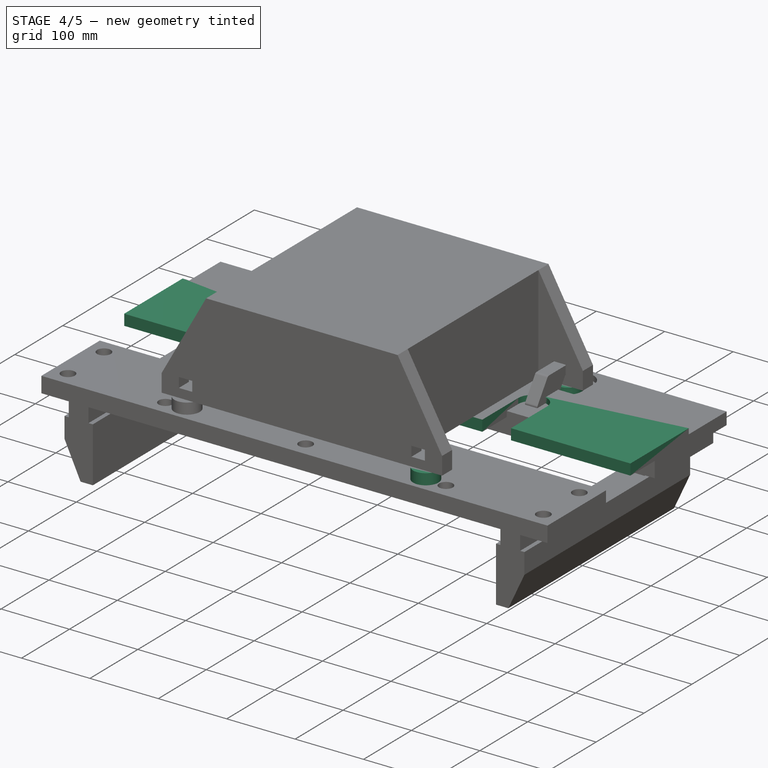
[diagram: stage 4 of 5 — iso view after this stage's code; geometry added in this stage tinted green]
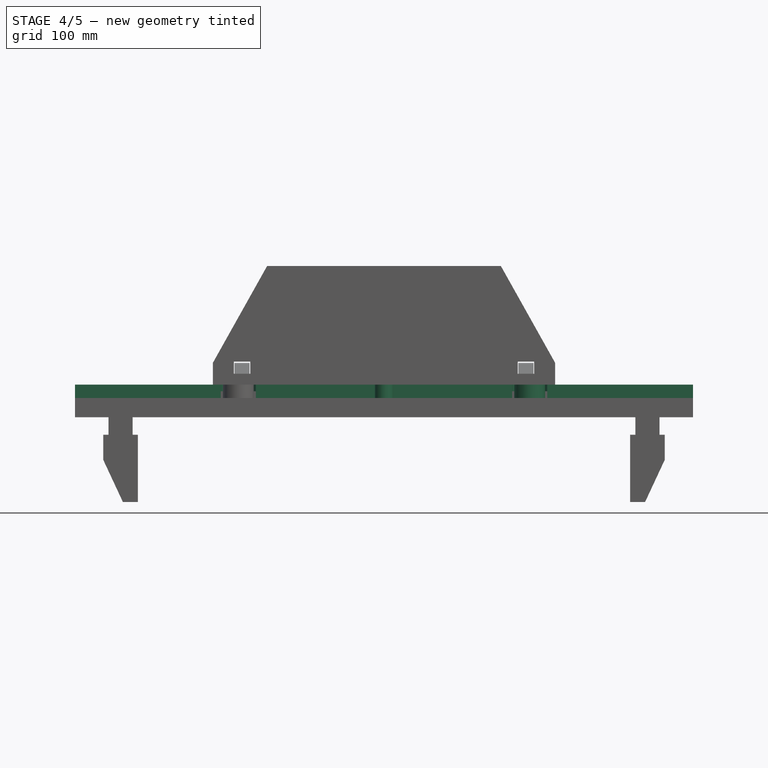
[diagram: stage 4 of 5 — front view after this stage's code; geometry added in this stage tinted green]
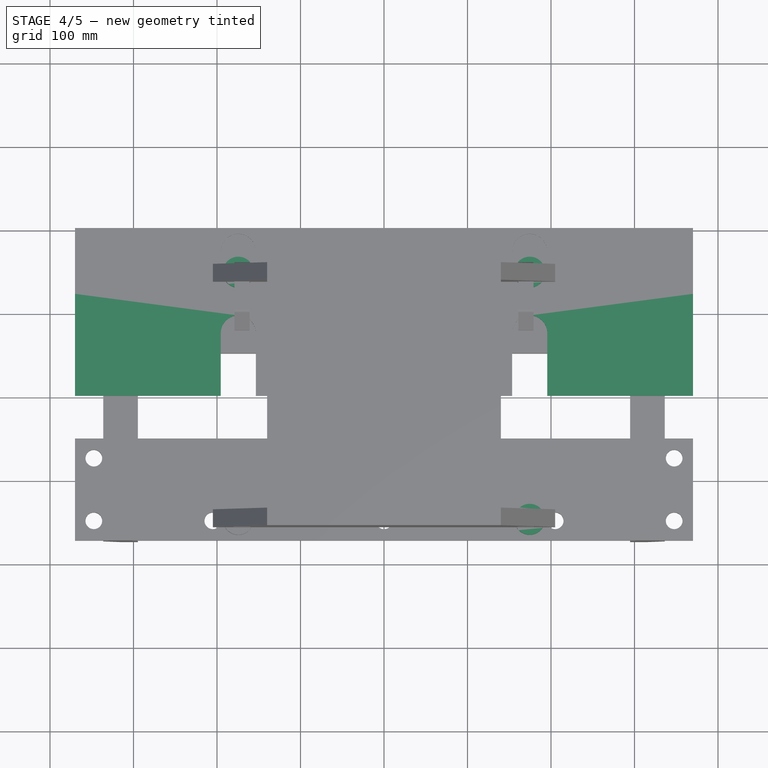
[diagram: stage 4 of 5 — top view after this stage's code; geometry added in this stage tinted green]
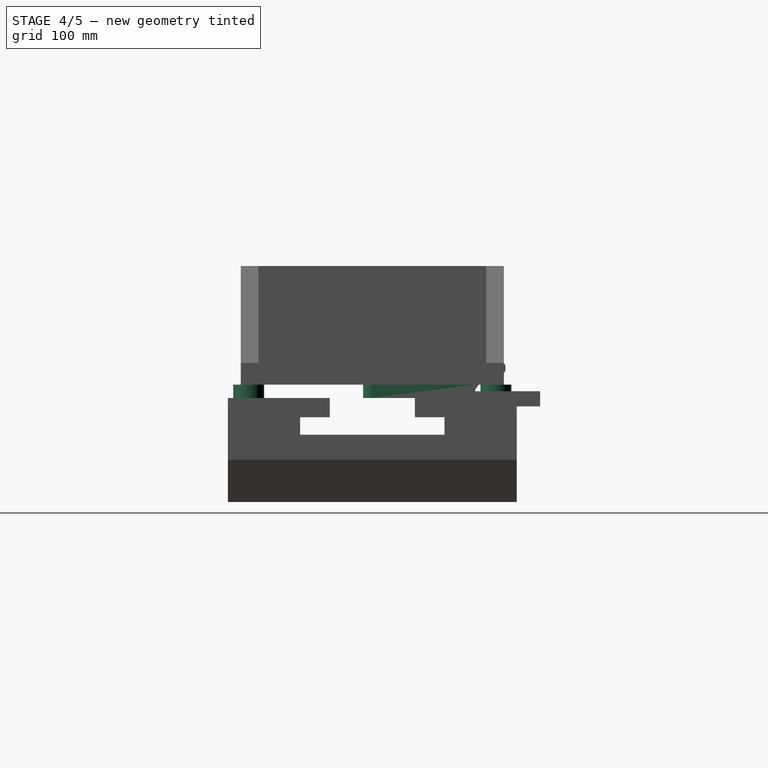
[diagram: stage 4 of 5 — right view after this stage's code; geometry added in this stage tinted green]
FEATURE [Sketcher::SketchObject] Sketch
  MapMode = 5
  Support = -> [XY_Plane001]
  expr: Constraints[24] = Parameter001.grundplatte_laenge
  sketch-geometry (13):
    g0: LineSegment StartX=-370 StartY=122 StartZ=0 EndX=370 EndY=122 EndZ=0
    g1: LineSegment StartX=370 StartY=122 StartZ=0 EndX=370 EndY=0 EndZ=0
    g2: LineSegment StartX=370 StartY=0 StartZ=0 EndX=195.5 EndY=0 EndZ=0
    g3: LineSegment StartX=-370 StartY=0 StartZ=0 EndX=-370 EndY=122 EndZ=0
    g4: ArcOfCircle CenterX=-174.5 CenterY=75 CenterZ=0 NormalX=0 NormalY=0 NormalZ=1 AngleXU=0 Radius=21 StartAngle=3.2503e-12 EndAngle=3.14159
    g5: LineSegment StartX=-195.5 StartY=75 StartZ=0 EndX=-195.5 EndY=0 EndZ=0
    g6: LineSegment StartX=-153.5 StartY=75 StartZ=0 EndX=-153.5 EndY=0 EndZ=0
    g7: ArcOfCircle CenterX=174.5 CenterY=75 CenterZ=0 NormalX=0 NormalY=0 NormalZ=1 AngleXU=0 Radius=21 StartAngle=5e-16 EndAngle=3.14159
    g8: LineSegment StartX=153.5 StartY=75 StartZ=0 EndX=153.5 EndY=0 EndZ=0
    g9: LineSegment StartX=195.5 StartY=75 StartZ=0 EndX=195.5 EndY=0 EndZ=0
    g10: LineSegment StartX=-195.5 StartY=0 StartZ=0 EndX=-370 EndY=0 EndZ=0
    g11: LineSegment StartX=153.5 StartY=0 StartZ=0 EndX=-153.5 EndY=0 EndZ=0
    g12: GeomPoint X=-174.5 Y=96 Z=0
  constraints (31):
    c: Coincident(g0,g1)
    c: Coincident(g1,g2)
    c: Coincident(g10,g3)
    c: Coincident(g3,g0)
    c: Horizontal(g2)
    c: Vertical(g1)
    c: Vertical(g3)
    c: Tangent(g4,g6) = 1.5708
    c: Tangent(g4,g5) = -1.5708
    c: Vertical(g5)
    c: Tangent(g7,g9) = 1.5708
    c: Tangent(g7,g8) = -1.5708
    c: Vertical(g8)
    c: Tangent(g2,g10)
    c: Tangent(g2,g11)
    c: Coincident(g8,g11)
    c: Coincident(g9,g2)
    c: Coincident(g6,g11)
    c: Coincident(g5,g10)
    c: Equal(g4,g7)
    c: Vertical(g9)
    c: Symmetric(g4,g7,g-2)
    c: Symmetric(g11,g11,g-1)
    c: Symmetric(g0,g0,g-2)
    c: DistanceX(g0,g0) = 740
    c: DistanceY(g3,g3) = 122
    c: DistanceX(g4,g7) = 349
    c: Diameter(g7) = 42
    c: PointOnObject(g12,g4)
    c: Vertical(g4,g12)
    c: Distance(g12,g0) = 26
FEATURE [PartDesign::Pad] Pad
  Length = 16
  Length2 = 100
  Profile = -> Sketch
  Type = 0
FEATURE [PartDesign::Body] Body  label="Grundplatte"
  Group = -> [Sketch,Pad,Sketch002,Pocket,LinearPattern,Sketch003,Hole]
  Origin = -> Origin001
  Tip = -> Hole
FEATURE [Sketcher::SketchObject] Sketch004
  MapMode = 5
  Support = -> [XY_Plane003]
  sketch-geometry (1):
    g0: Circle CenterX=0 CenterY=0 CenterZ=0 NormalX=0 NormalY=0 NormalZ=1 AngleXU=0 Radius=11
  constraints (2):
    c: Coincident(g0,g-1)
    c: Diameter(g0) = 22
FEATURE [PartDesign::Pad] Pad002
  Length = 22
  Length2 = 100
  Profile = -> Sketch004
  Type = 0
FEATURE [Sketcher::SketchObject] Sketch005
  MapMode = 5
  Placement = pos=(0,0,22) rot=(0,0,1;0rad)
  Support = -> [Pad002]
  sketch-geometry (1):
    g0: Circle CenterX=0 CenterY=0 CenterZ=0 NormalX=0 NormalY=0 NormalZ=1 AngleXU=0 Radius=6
  constraints (2):
    c: Coincident(g0,g-1)
    c: Diameter(g0) = 12
FEATURE [PartDesign::Hole] Hole001
  BaseFeature = -> Pad002
  Depth = 25
  DepthType = 1
  Diameter = 8.8
  DrillPoint = 1
  DrillPointAngle = 118
  HoleCutCountersinkAngle = 90
  HoleCutDepth = 4.8
  HoleCutDiameter = 16
  HoleCutType = 1
  ModelActualThread = false
  Profile = -> Sketch005
  Tapered = false
  TaperedAngle = 90
  ThreadAngle = 0
  ThreadClass = 0
  ThreadCutOffInner = 0
  ThreadCutOffOuter = 0
  ThreadDirection = 0
  ThreadFit = 0
  ThreadPitch = 0
  ThreadSize = 8
  ThreadType = 1
  Threaded = false
FEATURE [PartDesign::Chamfer] Chamfer
  Base = -> Hole001 [Edge3]
  BaseFeature = -> Hole001
  Size = 1
FEATURE [PartDesign::MultiTransform] MultiTransform  label="StandMatrix"
  BaseFeature = -> Pad004
  Originals = -> [Pad004]
  Placement = pos=(0,0,0) rot=(1,0,0;1.5708rad)
  Transformations = -> [LinearPattern001,LinearPattern002]
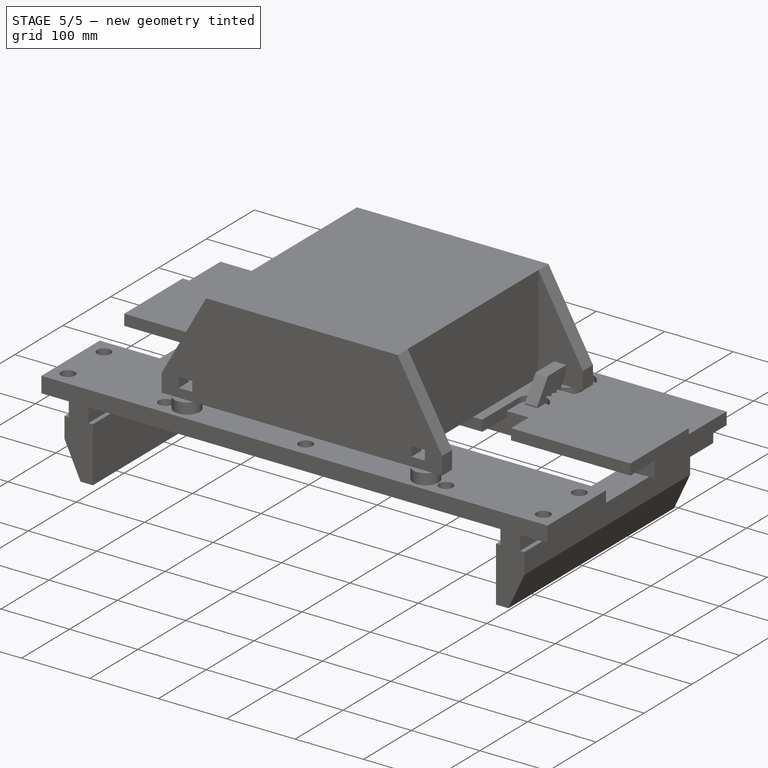
[diagram: stage 5 of 5 — iso view after this stage's code; geometry added in this stage tinted green]
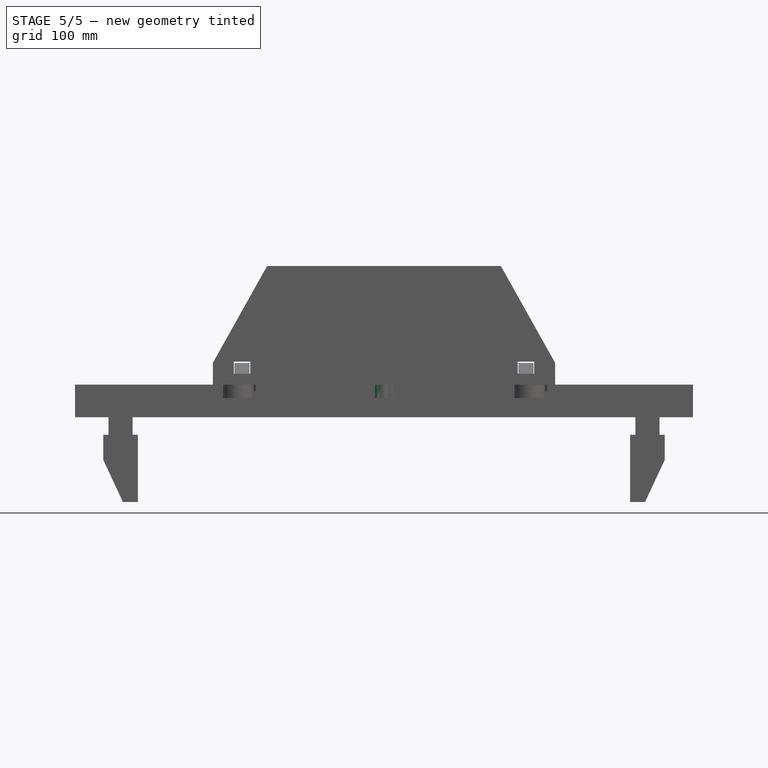
[diagram: stage 5 of 5 — front view after this stage's code; geometry added in this stage tinted green]
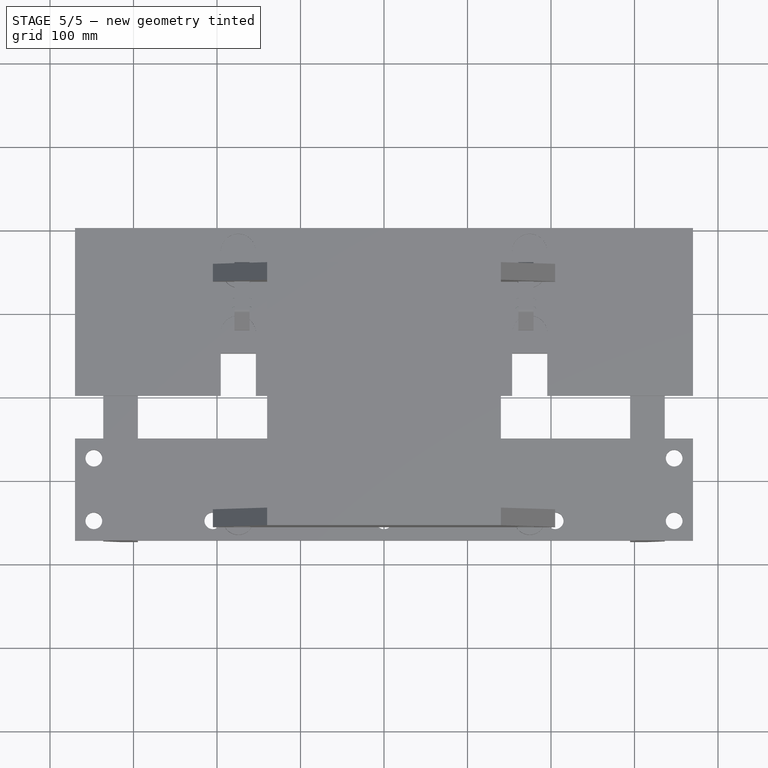
[diagram: stage 5 of 5 — top view after this stage's code; geometry added in this stage tinted green]
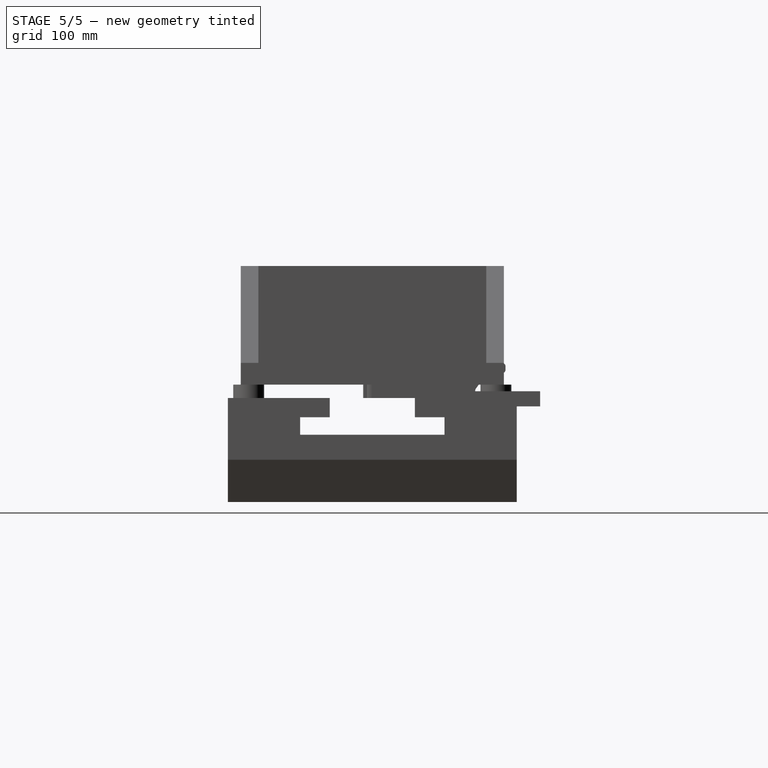
[diagram: stage 5 of 5 — right view after this stage's code; geometry added in this stage tinted green]
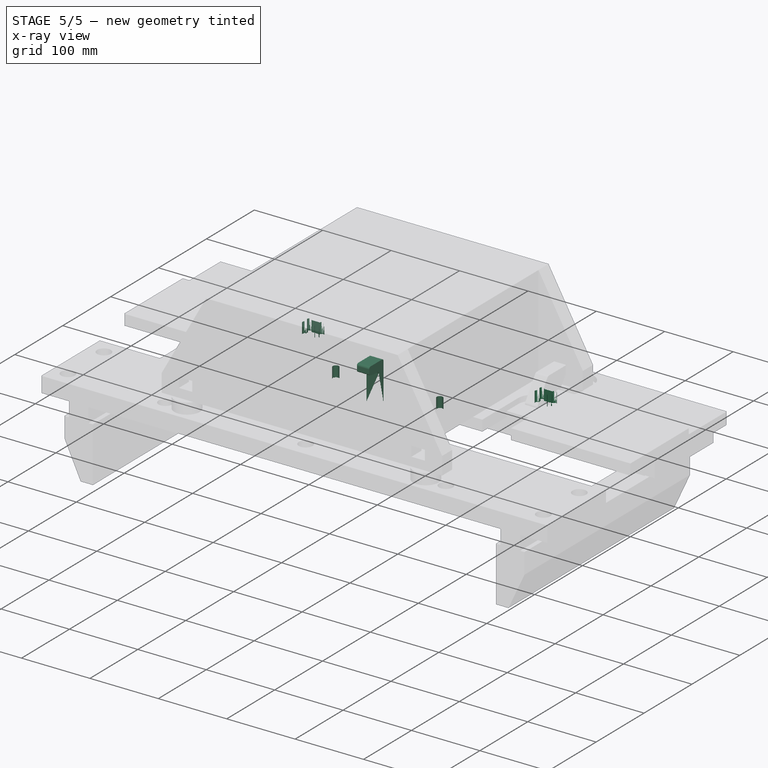
[diagram: stage 5 of 5 — x-ray composite at the iso view; earlier geometry ghosted, this stage's added geometry solid]
FEATURE [Sketcher::SketchObject] Sketch001
  MapMode = 5
  Placement = pos=(0,0,0) rot=(0.57735,0.57735,0.57735;2.0944rad)
  Support = -> [YZ_Plane002]
  sketch-geometry (8):
    g0: LineSegment StartX=-30 StartY=58 StartZ=0 EndX=-30 EndY=46.7633 EndZ=0
    g1: LineSegment StartX=-30 StartY=46.7633 StartZ=0 EndX=-20 EndY=45 EndZ=0
    g2: LineSegment StartX=-20 StartY=45 StartZ=0 EndX=-10 EndY=45 EndZ=0
    g3: LineSegment StartX=-10 StartY=45 StartZ=0 EndX=-10 EndY=0 EndZ=0
    g4: LineSegment StartX=-10 StartY=0 StartZ=0 EndX=0 EndY=0 EndZ=0
    g5: LineSegment StartX=0 StartY=0 StartZ=0 EndX=0 EndY=58 EndZ=0
    g6: LineSegment StartX=0 StartY=58 StartZ=0 EndX=-30 EndY=58 EndZ=0
    g7: GeomPoint X=-10 Y=16 Z=0
  constraints (22):
    c: Coincident(g0,g1)
    c: Coincident(g1,g2)
    c: Coincident(g2,g3)
    c: Coincident(g3,g4)
    c: Coincident(g4,g5)
    c: Coincident(g5,g6)
    c: Coincident(g6,g0)
    c: Horizontal(g6)
    c: Horizontal(g4)
    c: Horizontal(g2)
    c: Vertical(g0)
    c: Vertical(g3)
    c: Vertical(g5)
    c: Coincident(g4,g-1)
    c: DistanceY(g2,g5) = 13
    c: PointOnObject(g7,g3)
    c: Angle(g2,g1) = 2.96706
    c: DistanceY(g3,g7) = 16
    c: DistanceY(g7,g2) = 29
    c: DistanceX(g4,g4) = 10
    c: DistanceX(g2,g2) = 10
    c: DistanceX(g1,g1) = 10
FEATURE [PartDesign::Pad] Pad001
  Length = 18
  Length2 = 100
  Midplane = true
  Placement = pos=(0,0,0) rot=(0.57735,0.57735,0.57735;2.0944rad)
  Profile = -> Sketch001
  Type = 0
FEATURE [Sketcher::SketchObject] Sketch002
  ExternalGeometry = -> [Pad]
  MapMode = 5
  Support = -> [XY_Plane001]
  sketch-geometry (11):
    g0: LineSegment StartX=-160.9 StartY=111 StartZ=0 EndX=-160.9 EndY=106.9 EndZ=0
    g1: LineSegment StartX=-179.1 StartY=106.9 StartZ=0 EndX=-179.1 EndY=111 EndZ=0
    g2: ArcOfCircle CenterX=-179.1 CenterY=103.9 CenterZ=0 NormalX=0 NormalY=0 NormalZ=1 AngleXU=0 Radius=3 StartAngle=1.5708 EndAngle=6.28319
    g3: ArcOfCircle CenterX=-160.9 CenterY=103.9 CenterZ=0 NormalX=0 NormalY=0 NormalZ=1 AngleXU=0 Radius=3 StartAngle=3.14159 EndAngle=7.85398
    g4: GeomPoint X=-170 Y=114 Z=0
    g5: GeomPoint X=170 Y=114 Z=0
    g6: LineSegment StartX=-176.1 StartY=103.9 StartZ=0 EndX=-163.9 EndY=103.9 EndZ=0
    g7: ArcOfCircle CenterX=-160.9 CenterY=114 CenterZ=0 NormalX=0 NormalY=0 NormalZ=1 AngleXU=0 Radius=3 StartAngle=4.71239 EndAngle=9.42478
    g8: ArcOfCircle CenterX=-179.1 CenterY=114 CenterZ=0 NormalX=0 NormalY=0 NormalZ=1 AngleXU=0 Radius=3 StartAngle=1.69e-14 EndAngle=4.71239
    g9: LineSegment StartX=-176.1 StartY=114 StartZ=0 EndX=-163.9 EndY=114 EndZ=0
    g10: LineSegment [constr] StartX=-179.1 StartY=122 StartZ=0 EndX=-179.1 EndY=117 EndZ=0
  constraints (34):
    c: Vertical(g0)
    c: Vertical(g1)
    c: Equal(g2,g3)
    c: DistanceX(g1,g0) = 18.2
    c: Symmetric(g4,g5,g-2)
    c: DistanceX(g4,g5) = 340
    c: Diameter(g3) = 6
    c: Coincident(g1,g2)
    c: Coincident(g3,g0)
    c: Coincident(g2,g6)
    c: Coincident(g6,g3)
    c: Horizontal(g6)
    c: Distance(g4,g6) = 10.1
    c: PointOnObject(g2,g1)
    c: PointOnObject(g2,g6)
    c: PointOnObject(g3,g0)
    c: PointOnObject(g3,g6)
    c: Coincident(g8,g1)
    c: Coincident(g7,g0)
    c: Coincident(g8,g9)
    c: Coincident(g7,g9)
    c: Horizontal(g9)
    c: Equal(g8,g7)
    c: Equal(g7,g3)
    c: Symmetric(g9,g9,g4)
    c: PointOnObject(g8,g1)
    c: PointOnObject(g8,g9)
    c: PointOnObject(g7,g9)
    c: PointOnObject(g7,g0)
    c: PointOnObject(g10,g8)
    c: PointOnObject(g10,g-3)
    c: Perpendicular(g8,g10)
    c: Vertical(g10)
    c: DistanceY(g10,g10) = 5
FEATURE [PartDesign::Pocket] Pocket
  BaseFeature = -> Pad
  Length = 5
  Length2 = 100
  Profile = -> Sketch002
  Reversed = true
  Type = 1
FEATURE [PartDesign::LinearPattern] LinearPattern
  BaseFeature = -> Pocket
  Direction = -> X_Axis001
  Length = 340
  Occurrences = 2
  Originals = -> [Pocket]
FEATURE [PartDesign::Fillet] Fillet
  Base = -> Pad001 [Edge1,Edge2,Edge17,Edge8,Edge5]
  BaseFeature = -> Pad001
  Placement = pos=(0,0,0) rot=(0.57735,0.57735,0.57735;2.0944rad)
  Radius = 3
FEATURE [PartDesign::Body] Body001  label="Haken"
  Group = -> [Sketch001,Pad001,Fillet]
  Origin = -> Origin002
  Placement = pos=(-170,114,0) rot=(0,0,1;0rad)
  Tip = -> Fillet
FEATURE [Sketcher::SketchObject] Sketch003
  MapMode = 5
  Placement = pos=(0,0,16) rot=(0,0,1;0rad)
  Support = -> [LinearPattern]
  sketch-geometry (3):
    g0: LineSegment [constr] StartX=-76 StartY=22 StartZ=0 EndX=76 EndY=22 EndZ=0
    g1: Circle CenterX=-76 CenterY=22 CenterZ=0 NormalX=0 NormalY=0 NormalZ=1 AngleXU=0 Radius=8
    g2: Circle CenterX=76 CenterY=22 CenterZ=0 NormalX=0 NormalY=0 NormalZ=1 AngleXU=0 Radius=8
  constraints (7):
    c: Symmetric(g0,g0,g-2)
    c: Equal(g1,g2)
    c: Coincident(g0,g1)
    c: Coincident(g2,g0)
    c: Distance(g-1,g0) = 22
    c: DistanceX(g0,g0) = 152
    c: Diameter(g2) = 16
FEATURE [PartDesign::Hole] Hole
  BaseFeature = -> LinearPattern
  Depth = 25
  DepthType = 1
  Diameter = 8.8
  DrillPoint = 1
  DrillPointAngle = 118
  HoleCutCountersinkAngle = 90
  HoleCutDepth = 0
  HoleCutDiameter = 8
  HoleCutType = 0
  ModelActualThread = false
  Profile = -> Sketch003
  Tapered = false
  TaperedAngle = 90
  ThreadAngle = 0
  ThreadClass = 0
  ThreadCutOffInner = 0
  ThreadCutOffOuter = 0
  ThreadDirection = 0
  ThreadFit = 0
  ThreadPitch = 0
  ThreadSize = 8
  ThreadType = 1
  Threaded = false
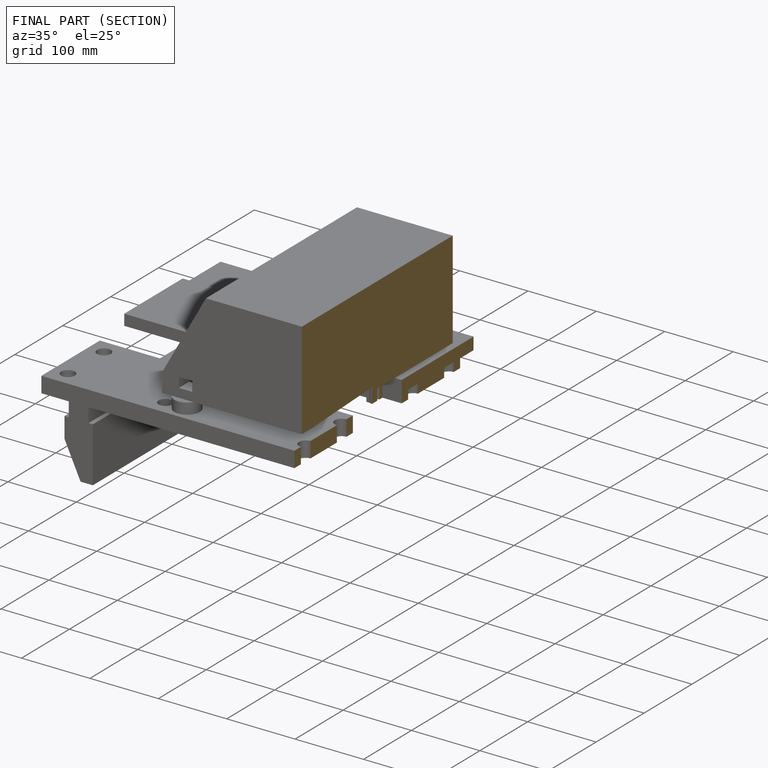
[diagram: finished part — half-section view (interior)]
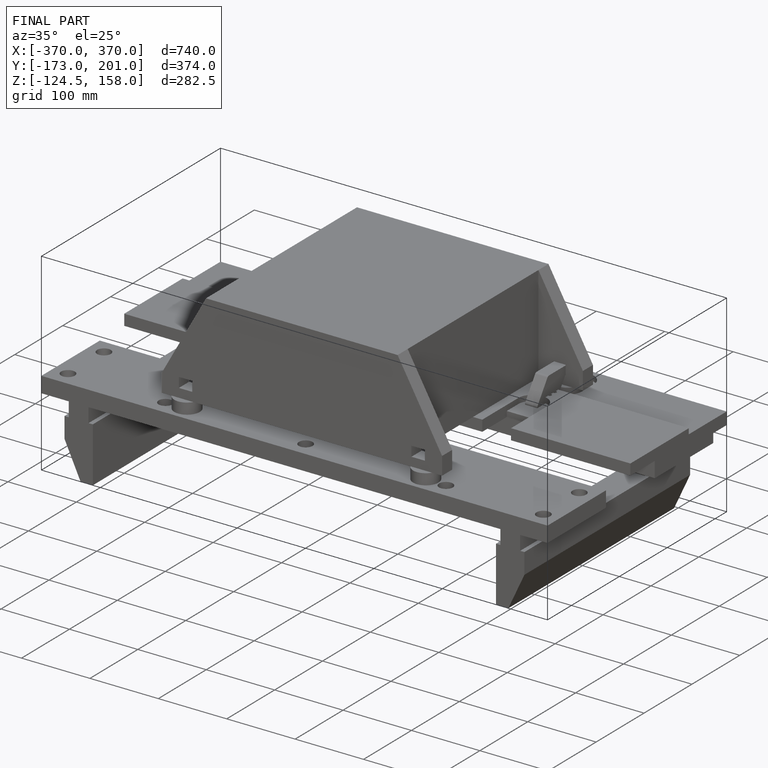
[diagram: finished part — iso view with bounding-box wireframe]
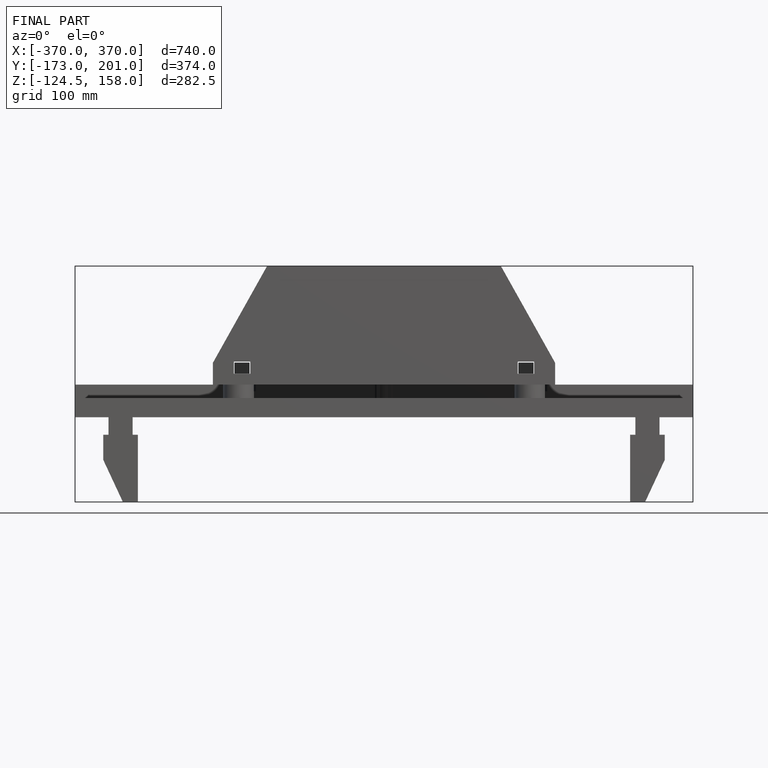
[diagram: finished part — front view with bounding-box wireframe]
